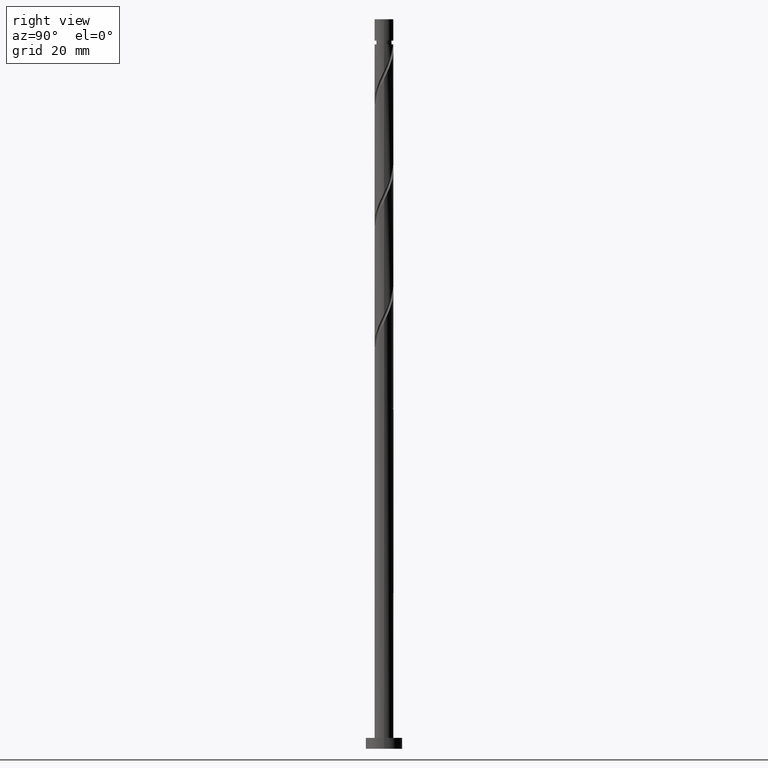
[diagram: clean part render]
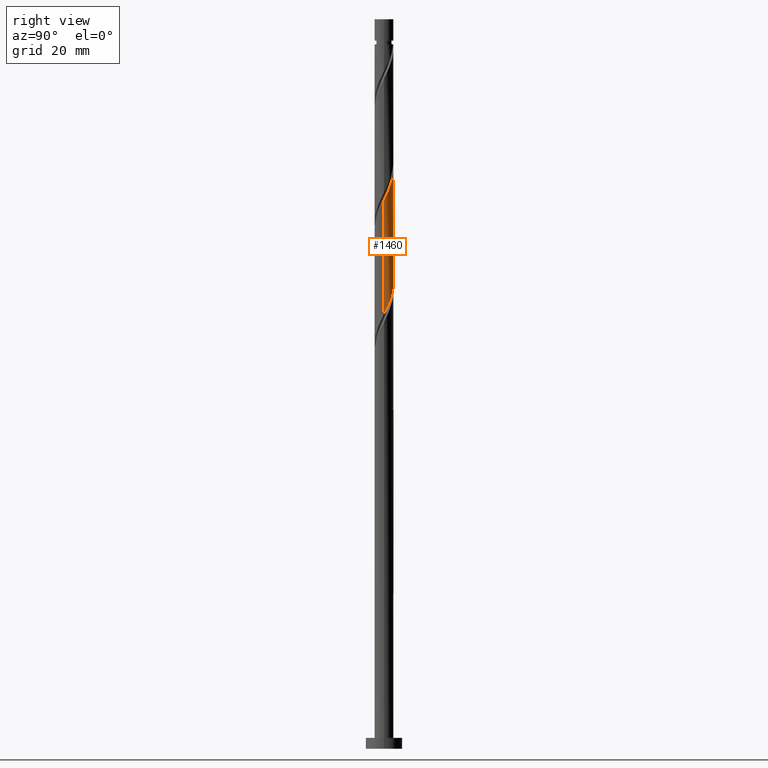
[diagram: same view with one face highlighted and labeled with its STEP entity id]
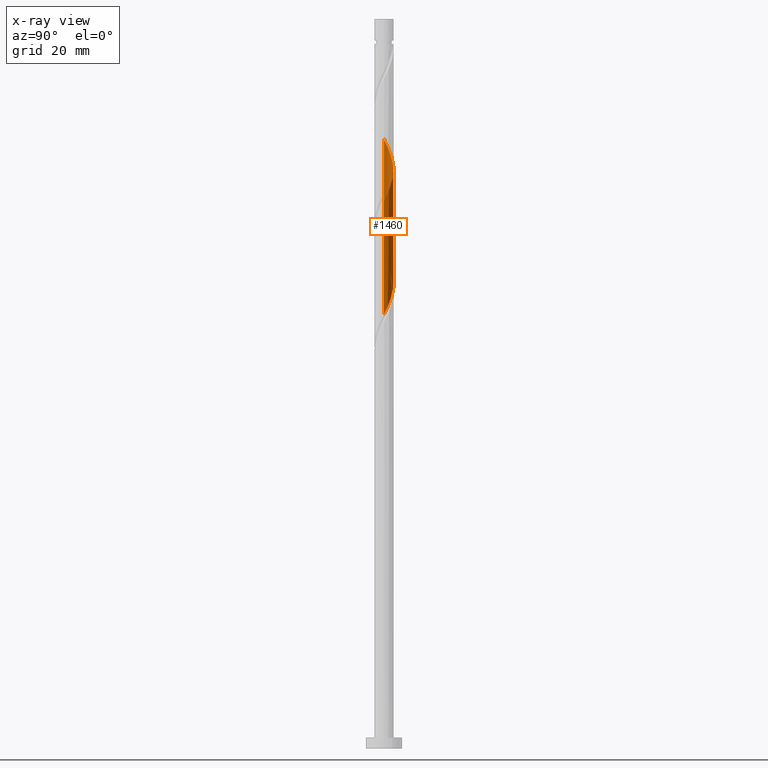
[diagram: x-ray of the same camera — body ghosted, the highlighted face saturated]
A machine part, right view. The second image highlights one B-rep face of the part: STEP entity #1460.
The next image is the same camera in x-ray: the body ghosted, the highlighted face saturated — about 0% of this face is hidden behind the body in this view.
In plain terms, the highlighted cylindrical surface (edge-blend (fillet) strip) has radius 2.6 mm, axis along (-0, -0, -1).
Its self-contained STEP definition (entity closure, byte-faithful):
#6 = VECTOR ( 'NONE', #183, 1000.000000000000000 ) ;
#9 = CARTESIAN_POINT ( 'NONE',  ( -2.600000000000001421, 0.2613098319673906600, 135.2803426277416747 ) ) ;
#39 = CARTESIAN_POINT ( 'NONE',  ( -0.8528440311481289005, 2.479883857795156299, 160.4446467861652934 ) ) ;
#60 = CARTESIAN_POINT ( 'NONE',  ( 2.600000000000003642, 6.504896232974682792E-16, 150.3533023531774404 ) ) ;
#69 = CARTESIAN_POINT ( 'NONE',  ( -2.600000000000003197, 2.175775636546703034E-15, 167.0199690198441544 ) ) ;
#117 = ORIENTED_EDGE ( 'NONE', *, *, #1715, .F. ) ;
#158 = VERTEX_POINT ( 'NONE', #1333 ) ;
#163 = CARTESIAN_POINT ( 'NONE',  ( -1.150490894682695275, 2.356594490121320273, 129.8890912306097789 ) ) ;
#165 = CARTESIAN_POINT ( 'NONE',  ( -1.159234639335141370, 2.327267722236859626, 161.1390912306097789 ) ) ;
#171 = CARTESIAN_POINT ( 'NONE',  ( -0.8259241135700324810, 2.465329462490471801, 129.1946467861653218 ) ) ;
#183 = DIRECTION ( 'NONE',  ( -0.000000000000000000, -0.000000000000000000, -1.000000000000000000 ) ) ;
#202 = CARTESIAN_POINT ( 'NONE',  ( -2.356594490121323382, 1.150490894682697274, 164.6113134528319506 ) ) ;
#221 = CARTESIAN_POINT ( 'NONE',  ( 2.600000000000000089, 0.07992907430995126183, 119.3102660182924382 ) ) ;
#232 = CARTESIAN_POINT ( 'NONE',  ( 2.356594490121322050, 1.150490894682692833, 121.5557578972764077 ) ) ;
#296 = CARTESIAN_POINT ( 'NONE',  ( 0.000000000000000000, 0.000000000000000000, 200.0000000000000000 ) ) ;
#312 = CARTESIAN_POINT ( 'NONE',  ( -0.1819429034427561542, 2.616116142204851336, 159.0557578972764077 ) ) ;
#338 = CARTESIAN_POINT ( 'NONE',  ( 2.465329462490473134, 0.8259241135700309266, 120.8613134528319790 ) ) ;
#342 = EDGE_CURVE ( 'NONE', #1197, #1029, #898, .T. ) ;
#349 = CARTESIAN_POINT ( 'NONE',  ( -0.5173934672954433323, 2.548000000000004039, 159.7502023417208932 ) ) ;
#363 = CARTESIAN_POINT ( 'NONE',  ( 1.465625247522153396, 2.174651586678561177, 124.3335356750542076 ) ) ;
#372 = CARTESIAN_POINT ( 'NONE',  ( 0.5173934672954443315, 2.547999999999999599, 126.4168690083875504 ) ) ;
#390 = VECTOR ( 'NONE', #1547, 1000.000000000000000 ) ;
#418 = CARTESIAN_POINT ( 'NONE',  ( -2.600000000000000533, -3.790784356457680496E-15, 135.8137689969309747 ) ) ;
#420 = EDGE_CURVE ( 'NONE', #1315, #158, #1662, .T. ) ;
#438 = ORIENTED_EDGE ( 'NONE', *, *, #420, .T. ) ;
#452 = CARTESIAN_POINT ( 'NONE',  ( -1.722075886429969005, 1.947935995195030801, 162.5279801194986646 ) ) ;
#459 =( BOUNDED_CURVE ( )  B_SPLINE_CURVE ( 2, ( #60, #610, #1161, #586, #1693, #595, #1133, #1028, #1548, #493, #1253, #1511, #716, #312, #349, #39, #165, #1655, #452, #1416, #882, #202, #753, #875, #726, #1010, #69 ),
 .UNSPECIFIED., .F., .T. ) 
 B_SPLINE_CURVE_WITH_KNOTS ( ( 3, 2, 2, 2, 2, 2, 2, 2, 2, 2, 2, 2, 2, 3 ),
 ( 0.4295317669814458506, 0.4375000000000000000, 0.4479166666666666297, 0.4583333333333333703, 0.4687500000000000000, 0.4791666666666666297, 0.4895833333333333703, 0.5000000000000000000, 0.5104166666666667407, 0.5208333333333332593, 0.5312500000000000000, 0.5416666666666667407, 0.5520833333333332593, 0.5545317669814462391 ),
 .UNSPECIFIED. ) 
 CURVE ( )  GEOMETRIC_REPRESENTATION_ITEM ( )  RATIONAL_B_SPLINE_CURVE ( ( 0.9062941362546526047, 0.9031415850403562429, 0.9090909090909320422, 0.9013135103398504100, 0.9090909090909320422, 0.9013135103398504100, 0.9090909090909320422, 0.9013135103398504100, 0.9090909090909320422, 0.9013135103398504100, 0.9090909090909320422, 0.9013135103398504100, 0.9090909090909320422, 0.9013135103398504100, 0.9090909090909320422, 0.9013135103398504100, 0.9090909090909320422, 0.9013135103398504100, 0.9090909090909320422, 0.9013135103398504100, 0.9090909090909320422, 0.9013135103398504100, 0.9090909090909320422, 0.9013135103398504100, 0.9090909090909320422, 0.9072628343904258763, 0.9062941362546524937 ) ) 
 REPRESENTATION_ITEM ( '' )  );
#479 = CARTESIAN_POINT ( 'NONE',  ( 1.978526525337783282, 1.721220403711493319, 122.9446467861653076 ) ) ;
#493 = CARTESIAN_POINT ( 'NONE',  ( 1.150490894682697718, 2.356594490121322938, 156.2779801194986646 ) ) ;
#511 = AXIS2_PLACEMENT_3D ( 'NONE', #296, #1530, #1128 ) ;
#586 = CARTESIAN_POINT ( 'NONE',  ( 2.479883857795156743, 0.8528440311481283453, 152.1113134528319790 ) ) ;
#595 = CARTESIAN_POINT ( 'NONE',  ( 2.174651586678565174, 1.465625247522152730, 153.5002023417208079 ) ) ;
#610 = CARTESIAN_POINT ( 'NONE',  ( 2.600000000000006306, 0.2613098319673792247, 150.8867287223666835 ) ) ;
#700 = CYLINDRICAL_SURFACE ( 'NONE', #511, 2.600000000000000089 ) ;
#714 = CARTESIAN_POINT ( 'NONE',  ( -0.5013573324573700196, 2.574064434859621997, 128.5002023417208932 ) ) ;
#715 = CARTESIAN_POINT ( 'NONE',  ( 2.600000000000000089, 3.184081677783118191E-16, 200.0000000000000000 ) ) ;
#716 = CARTESIAN_POINT ( 'NONE',  ( 0.1597072145073082372, 2.595090288532238887, 158.3613134528320643 ) ) ;
#724 = CARTESIAN_POINT ( 'NONE',  ( -0.1597072145073054894, 2.595090288532234890, 127.8057578972764361 ) ) ;
#726 = CARTESIAN_POINT ( 'NONE',  ( -2.595090288532238887, 0.1597072145073066274, 166.6946467861653502 ) ) ;
#744 = CARTESIAN_POINT ( 'NONE',  ( 0.8528440311481305658, 2.479883857795150082, 125.7224245639431075 ) ) ;
#750 = CARTESIAN_POINT ( 'NONE',  ( 2.574064434859622441, 0.5013573324573682433, 120.1668690083875077 ) ) ;
#753 = CARTESIAN_POINT ( 'NONE',  ( -2.465329462490474022, 0.8259241135700345904, 165.3057578972764645 ) ) ;
#765 = CARTESIAN_POINT ( 'NONE',  ( -2.174651586678561177, 1.465625247522152286, 132.6668690083874935 ) ) ;
#775 = CARTESIAN_POINT ( 'NONE',  ( -1.721220403711494207, 1.978526525337782394, 131.2779801194986078 ) ) ;
#784 = CARTESIAN_POINT ( 'NONE',  ( -1.947935995195027248, 1.722075886429967673, 131.9724245639430933 ) ) ;
#834 = CARTESIAN_POINT ( 'NONE',  ( -2.327267722236857406, 1.159234639335140704, 133.3613134528319790 ) ) ;
#875 = CARTESIAN_POINT ( 'NONE',  ( -2.574064434859625994, 0.5013573324573711298, 166.0002023417209216 ) ) ;
#882 = CARTESIAN_POINT ( 'NONE',  ( -2.167560507729554331, 1.435855649197097073, 163.9168690083875219 ) ) ;
#898 = LINE ( 'NONE', #1170, #6 ) ;
#961 = CARTESIAN_POINT ( 'NONE',  ( -2.600000000000000533, -3.790784356457680496E-15, 135.8137689969309747 ) ) ;
#973 = ORIENTED_EDGE ( 'NONE', *, *, #1276, .F. ) ;
#1010 = CARTESIAN_POINT ( 'NONE',  ( -2.600000000000003197, 0.07992907430995058182, 166.8568053318160196 ) ) ;
#1028 = CARTESIAN_POINT ( 'NONE',  ( 1.721220403711498426, 1.978526525337783504, 154.8890912306097789 ) ) ;
#1029 = VERTEX_POINT ( 'NONE', #961 ) ;
#1065 = CARTESIAN_POINT ( 'NONE',  ( -2.600000000000003197, 2.175775636546703034E-15, 167.0199690198441544 ) ) ;
#1128 = DIRECTION ( 'NONE',  ( -1.000000000000000000, 0.000000000000000000, 0.000000000000000000 ) ) ;
#1133 = CARTESIAN_POINT ( 'NONE',  ( 1.947935995195031689, 1.722075886429967673, 154.1946467861653218 ) ) ;
#1158 = CARTESIAN_POINT ( 'NONE',  ( 2.600000000000003642, 6.504896232974681806E-16, 150.3533023531774404 ) ) ;
#1161 = CARTESIAN_POINT ( 'NONE',  ( 2.548000000000004039, 0.5173934672954436653, 151.4168690083874935 ) ) ;
#1170 = CARTESIAN_POINT ( 'NONE',  ( -2.600000000000000089, 0.000000000000000000, 200.0000000000000000 ) ) ;
#1176 = CARTESIAN_POINT ( 'NONE',  ( 1.159234639335142480, 2.327267722236856518, 125.0279801194986504 ) ) ;
#1197 = VERTEX_POINT ( 'NONE', #1065 ) ;
#1240 = ORIENTED_EDGE ( 'NONE', *, *, #342, .F. ) ;
#1253 = CARTESIAN_POINT ( 'NONE',  ( 0.8259241135700351455, 2.465329462490473578, 156.9724245639430933 ) ) ;
#1276 = EDGE_CURVE ( 'NONE', #1029, #158, #1356, .T. ) ;
#1279 = CARTESIAN_POINT ( 'NONE',  ( 2.595090288532234890, 0.1597072145073042959, 119.4724245639431075 ) ) ;
#1286 = CARTESIAN_POINT ( 'NONE',  ( 2.600000000000000533, 3.087956487607539127E-15, 119.1471023302642891 ) ) ;
#1296 = CARTESIAN_POINT ( 'NONE',  ( 0.1819429034427590131, 2.616116142204848227, 127.1113134528319648 ) ) ;
#1315 = VERTEX_POINT ( 'NONE', #1158 ) ;
#1333 = CARTESIAN_POINT ( 'NONE',  ( 2.600000000000000533, 3.087956487607539127E-15, 119.1471023302642891 ) ) ;
#1335 = EDGE_LOOP ( 'NONE', ( #117, #438, #973, #1240 ) ) ;
#1356 =( BOUNDED_CURVE ( )  B_SPLINE_CURVE ( 2, ( #418, #9, #1465, #1485, #834, #765, #784, #775, #1717, #163, #171, #714, #724, #1296, #372, #744, #1176, #363, #1413, #479, #1446, #232, #338, #750, #1279, #221, #1286 ),
 .UNSPECIFIED., .F., .T. ) 
 B_SPLINE_CURVE_WITH_KNOTS ( ( 3, 2, 2, 2, 2, 2, 2, 2, 2, 2, 2, 2, 2, 3 ),
 ( 0.6795317669814461281, 0.6875000000000000000, 0.6979166666666666297, 0.7083333333333333703, 0.7187500000000000000, 0.7291666666666666297, 0.7395833333333333703, 0.7500000000000000000, 0.7604166666666666297, 0.7708333333333333703, 0.7812500000000000000, 0.7916666666666666297, 0.8020833333333333703, 0.8045317669814462391 ),
 .UNSPECIFIED. ) 
 CURVE ( )  GEOMETRIC_REPRESENTATION_ITEM ( )  RATIONAL_B_SPLINE_CURVE ( ( 0.9062941362546473867, 0.9031415850403513579, 0.9090909090909268242, 0.9013135103398453030, 0.9090909090909268242, 0.9013135103398453030, 0.9090909090909268242, 0.9013135103398453030, 0.9090909090909268242, 0.9013135103398453030, 0.9090909090909268242, 0.9013135103398453030, 0.9090909090909268242, 0.9013135103398453030, 0.9090909090909268242, 0.9013135103398453030, 0.9090909090909268242, 0.9013135103398453030, 0.9090909090909268242, 0.9013135103398453030, 0.9090909090909268242, 0.9013135103398453030, 0.9090909090909268242, 0.9013135103398453030, 0.9090909090909268242, 0.9072628343904205472, 0.9062941362546470536 ) ) 
 REPRESENTATION_ITEM ( '' )  );
#1413 = CARTESIAN_POINT ( 'NONE',  ( 1.722075886429968561, 1.947935995195026804, 123.6390912306097505 ) ) ;
#1416 = CARTESIAN_POINT ( 'NONE',  ( -1.978526525337784614, 1.721220403711496871, 163.2224245639430933 ) ) ;
#1446 = CARTESIAN_POINT ( 'NONE',  ( 2.167560507729551667, 1.435855649197094186, 122.2502023417208790 ) ) ;
#1460 = ADVANCED_FACE ( 'NONE', ( #1744 ), #700, .T. ) ;
#1465 = CARTESIAN_POINT ( 'NONE',  ( -2.547999999999999599, 0.5173934672954437763, 134.7502023417208648 ) ) ;
#1485 = CARTESIAN_POINT ( 'NONE',  ( -2.479883857795150970, 0.8528440311481283453, 134.0557578972764077 ) ) ;
#1511 = CARTESIAN_POINT ( 'NONE',  ( 0.5013573324573725731, 2.574064434859625550, 157.6668690083875219 ) ) ;
#1530 = DIRECTION ( 'NONE',  ( -0.000000000000000000, -0.000000000000000000, -1.000000000000000000 ) ) ;
#1547 = DIRECTION ( 'NONE',  ( -0.000000000000000000, -0.000000000000000000, -1.000000000000000000 ) ) ;
#1548 = CARTESIAN_POINT ( 'NONE',  ( 1.435855649197097295, 2.167560507729553887, 155.5835356750542644 ) ) ;
#1655 = CARTESIAN_POINT ( 'NONE',  ( -1.465625247522153618, 2.174651586678563842, 161.8335356750542076 ) ) ;
#1662 = LINE ( 'NONE', #715, #390 ) ;
#1693 = CARTESIAN_POINT ( 'NONE',  ( 2.327267722236860514, 1.159234639335140704, 152.8057578972764077 ) ) ;
#1715 = EDGE_CURVE ( 'NONE', #1315, #1197, #459, .T. ) ;
#1717 = CARTESIAN_POINT ( 'NONE',  ( -1.435855649197094852, 2.167560507729551667, 130.5835356750542076 ) ) ;
#1744 = FACE_OUTER_BOUND ( 'NONE', #1335, .T. ) ;